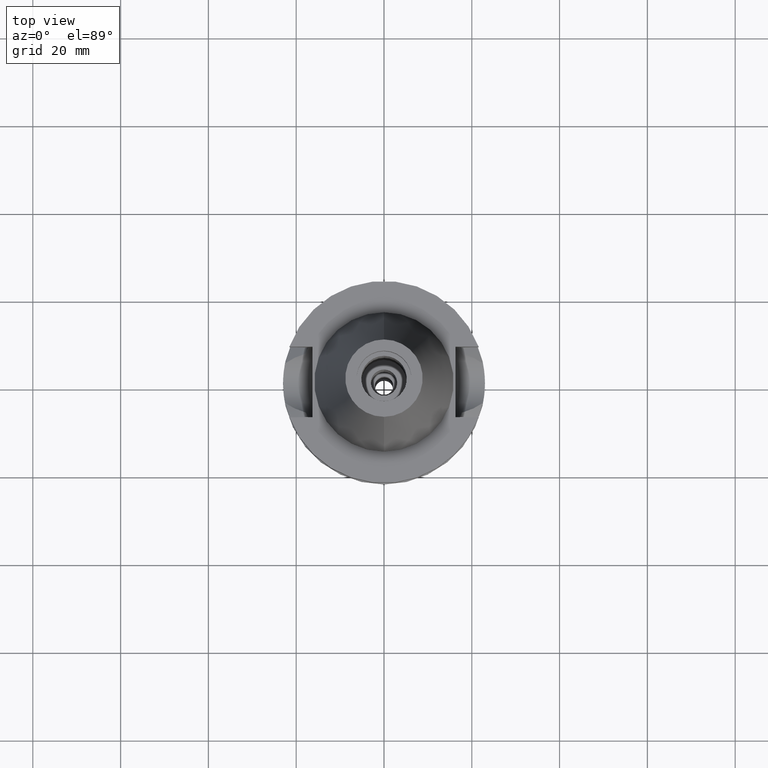
[diagram: clean part render]
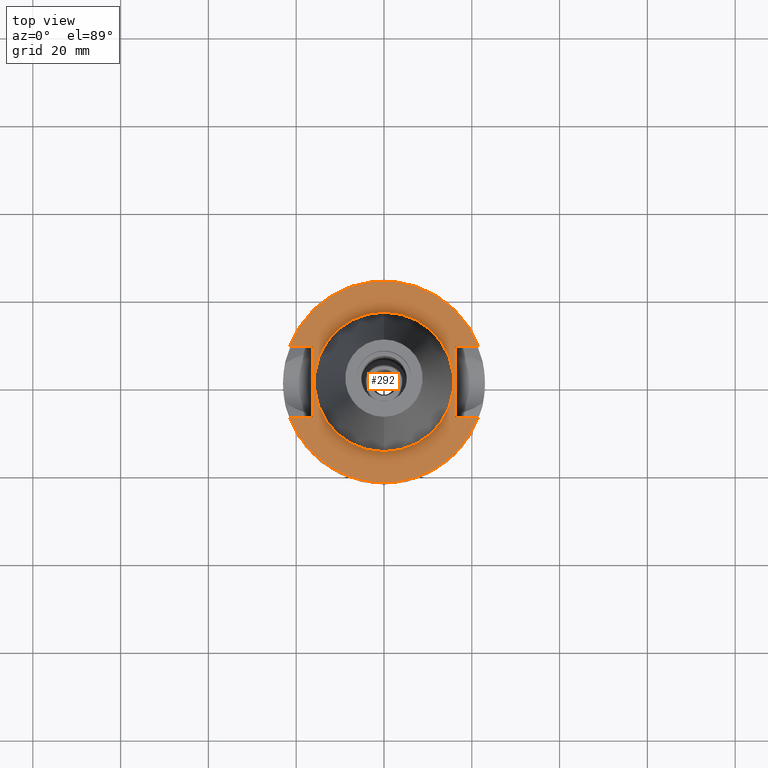
[diagram: same view with one face highlighted and labeled with its STEP entity id]
A machine part, top view. The second image highlights one B-rep face of the part: STEP entity #292.
In plain terms, the highlighted planar face has unit normal (0, 0, -1).
Its self-contained STEP definition (entity closure, byte-faithful):
#10 = DIRECTION ( 'NONE',  ( 0.0000000000000000000, -1.000000000000000000, 0.0000000000000000000 ) ) ;
#17 = CARTESIAN_POINT ( 'NONE',  ( 16.29999999999999716, 8.050000000000000711, -1.000000000000000000 ) ) ;
#44 = AXIS2_PLACEMENT_3D ( 'NONE', #237, #2260, #1130 ) ;
#46 = EDGE_CURVE ( 'NONE', #525, #2141, #2138, .T. ) ;
#111 = EDGE_LOOP ( 'NONE', ( #1026, #2901, #780, #2369, #2310, #608, #1192, #2338 ) ) ;
#120 = VECTOR ( 'NONE', #649, 1000.000000000000000 ) ;
#190 = CARTESIAN_POINT ( 'NONE',  ( 0.0000000000000000000, 1.908856965831000054E-14, -0.9999999999999000799 ) ) ;
#212 = CIRCLE ( 'NONE', #1205, 15.87500000000000000 ) ;
#237 = CARTESIAN_POINT ( 'NONE',  ( 0.0000000000000000000, 1.908856965831000054E-14, -0.9999999999999000799 ) ) ;
#245 = EDGE_CURVE ( 'NONE', #1819, #1390, #1529, .T. ) ;
#292 = ADVANCED_FACE ( 'NONE', ( #1425, #788 ), #1233, .F. ) ;
#320 = VECTOR ( 'NONE', #2548, 1000.000000000000000 ) ;
#341 = VERTEX_POINT ( 'NONE', #1719 ) ;
#520 = AXIS2_PLACEMENT_3D ( 'NONE', #2342, #2779, #730 ) ;
#525 = VERTEX_POINT ( 'NONE', #2503 ) ;
#547 = CARTESIAN_POINT ( 'NONE',  ( -16.29999999999999716, 8.050000000000000711, -1.000000000000000000 ) ) ;
#549 = VECTOR ( 'NONE', #926, 1000.000000000000000 ) ;
#608 = ORIENTED_EDGE ( 'NONE', *, *, #245, .F. ) ;
#649 = DIRECTION ( 'NONE',  ( 0.0000000000000000000, -1.000000000000000000, 0.0000000000000000000 ) ) ;
#690 = EDGE_CURVE ( 'NONE', #2107, #2502, #2836, .T. ) ;
#700 = CARTESIAN_POINT ( 'NONE',  ( 0.0000000000000000000, 1.908856965831000054E-14, -0.9999999999999000799 ) ) ;
#730 = DIRECTION ( 'NONE',  ( 0.0000000000000000000, 1.000000000000000000, 0.0000000000000000000 ) ) ;
#763 = CARTESIAN_POINT ( 'NONE',  ( 0.0000000000000000000, -15.87500000000000000, -0.9999999999999000799 ) ) ;
#780 = ORIENTED_EDGE ( 'NONE', *, *, #2422, .F. ) ;
#787 = CARTESIAN_POINT ( 'NONE',  ( 16.29999999999999716, -8.050000000000000711, -1.000000000000000000 ) ) ;
#788 = FACE_BOUND ( 'NONE', #2192, .T. ) ;
#862 = DIRECTION ( 'NONE',  ( 0.0000000000000000000, 0.0000000000000000000, 1.000000000000000000 ) ) ;
#893 = CARTESIAN_POINT ( 'NONE',  ( -16.29999999999999716, 8.050000000000000711, -1.000000000000000000 ) ) ;
#907 = LINE ( 'NONE', #893, #2284 ) ;
#926 = DIRECTION ( 'NONE',  ( 1.000000000000000000, 9.380896855521999773E-14, 0.0000000000000000000 ) ) ;
#940 = LINE ( 'NONE', #1853, #1859 ) ;
#1003 = EDGE_CURVE ( 'NONE', #2502, #1819, #907, .T. ) ;
#1026 = ORIENTED_EDGE ( 'NONE', *, *, #2108, .T. ) ;
#1027 = CARTESIAN_POINT ( 'NONE',  ( 21.54524309446999908, 8.050000000000000711, -0.9999999999999000799 ) ) ;
#1050 = CARTESIAN_POINT ( 'NONE',  ( -16.29999999999999716, -8.050000000000000711, -1.000000000000000000 ) ) ;
#1068 = CARTESIAN_POINT ( 'NONE',  ( -16.29999999999999716, -8.050000000000000711, -1.000000000000000000 ) ) ;
#1087 = LINE ( 'NONE', #1050, #2166 ) ;
#1102 = EDGE_CURVE ( 'NONE', #1447, #1755, #212, .T. ) ;
#1130 = DIRECTION ( 'NONE',  ( 0.0000000000000000000, -1.000000000000000000, 0.0000000000000000000 ) ) ;
#1192 = ORIENTED_EDGE ( 'NONE', *, *, #1003, .F. ) ;
#1205 = AXIS2_PLACEMENT_3D ( 'NONE', #700, #862, #10 ) ;
#1222 = VERTEX_POINT ( 'NONE', #787 ) ;
#1233 = PLANE ( 'NONE',  #2194 ) ;
#1361 = AXIS2_PLACEMENT_3D ( 'NONE', #190, #1578, #1400 ) ;
#1363 = ORIENTED_EDGE ( 'NONE', *, *, #2864, .F. ) ;
#1390 = VERTEX_POINT ( 'NONE', #1027 ) ;
#1400 = DIRECTION ( 'NONE',  ( 0.0000000000000000000, 1.000000000000000000, 0.0000000000000000000 ) ) ;
#1425 = FACE_OUTER_BOUND ( 'NONE', #111, .T. ) ;
#1447 = VERTEX_POINT ( 'NONE', #763 ) ;
#1473 = CARTESIAN_POINT ( 'NONE',  ( 0.0000000000000000000, 1.212400331155999925E-14, -1.000000000000000000 ) ) ;
#1529 = CIRCLE ( 'NONE', #520, 23.00000000000000000 ) ;
#1545 = LINE ( 'NONE', #2893, #120 ) ;
#1578 = DIRECTION ( 'NONE',  ( 0.0000000000000000000, 0.0000000000000000000, 1.000000000000000000 ) ) ;
#1613 = EDGE_CURVE ( 'NONE', #341, #1222, #1545, .T. ) ;
#1719 = CARTESIAN_POINT ( 'NONE',  ( 16.29999999999999716, 8.050000000000000711, -1.000000000000000000 ) ) ;
#1755 = VERTEX_POINT ( 'NONE', #2536 ) ;
#1819 = VERTEX_POINT ( 'NONE', #1880 ) ;
#1853 = CARTESIAN_POINT ( 'NONE',  ( 16.29999999999999716, -8.050000000000000711, -1.000000000000000000 ) ) ;
#1859 = VECTOR ( 'NONE', #2534, 1000.000000000000000 ) ;
#1880 = CARTESIAN_POINT ( 'NONE',  ( -21.54524309446999908, 8.050000000000000711, -1.000000000000000000 ) ) ;
#1887 = EDGE_CURVE ( 'NONE', #341, #1390, #2063, .T. ) ;
#1910 = DIRECTION ( 'NONE',  ( 0.0000000000000000000, -1.000000000000000000, 0.0000000000000000000 ) ) ;
#2011 = DIRECTION ( 'NONE',  ( -1.000000000000000000, 9.347030801892000173E-14, 0.0000000000000000000 ) ) ;
#2063 = LINE ( 'NONE', #17, #549 ) ;
#2107 = VERTEX_POINT ( 'NONE', #1068 ) ;
#2108 = EDGE_CURVE ( 'NONE', #2107, #2141, #1087, .T. ) ;
#2114 = ORIENTED_EDGE ( 'NONE', *, *, #1102, .F. ) ;
#2138 = CIRCLE ( 'NONE', #44, 23.00000000000000000 ) ;
#2141 = VERTEX_POINT ( 'NONE', #2889 ) ;
#2166 = VECTOR ( 'NONE', #2937, 1000.000000000000000 ) ;
#2192 = EDGE_LOOP ( 'NONE', ( #1363, #2114 ) ) ;
#2194 = AXIS2_PLACEMENT_3D ( 'NONE', #1473, #2840, #1910 ) ;
#2260 = DIRECTION ( 'NONE',  ( 0.0000000000000000000, 0.0000000000000000000, -1.000000000000000000 ) ) ;
#2284 = VECTOR ( 'NONE', #2011, 1000.000000000000000 ) ;
#2310 = ORIENTED_EDGE ( 'NONE', *, *, #1887, .T. ) ;
#2338 = ORIENTED_EDGE ( 'NONE', *, *, #690, .F. ) ;
#2342 = CARTESIAN_POINT ( 'NONE',  ( 0.0000000000000000000, 1.908856965831000054E-14, -0.9999999999999000799 ) ) ;
#2369 = ORIENTED_EDGE ( 'NONE', *, *, #1613, .F. ) ;
#2422 = EDGE_CURVE ( 'NONE', #1222, #525, #940, .T. ) ;
#2502 = VERTEX_POINT ( 'NONE', #547 ) ;
#2503 = CARTESIAN_POINT ( 'NONE',  ( 21.54524309446999908, -8.050000000000000711, -1.000000000000000000 ) ) ;
#2534 = DIRECTION ( 'NONE',  ( 1.000000000000000000, -9.347030801892000173E-14, 0.0000000000000000000 ) ) ;
#2536 = CARTESIAN_POINT ( 'NONE',  ( 0.0000000000000000000, 15.87500000000000000, -0.9999999999999000799 ) ) ;
#2548 = DIRECTION ( 'NONE',  ( 0.0000000000000000000, 1.000000000000000000, 0.0000000000000000000 ) ) ;
#2573 = CARTESIAN_POINT ( 'NONE',  ( -16.29999999999999716, -8.050000000000000711, -1.000000000000000000 ) ) ;
#2645 = CIRCLE ( 'NONE', #1361, 15.87500000000000000 ) ;
#2779 = DIRECTION ( 'NONE',  ( 0.0000000000000000000, 0.0000000000000000000, -1.000000000000000000 ) ) ;
#2836 = LINE ( 'NONE', #2573, #320 ) ;
#2840 = DIRECTION ( 'NONE',  ( 0.0000000000000000000, 0.0000000000000000000, -1.000000000000000000 ) ) ;
#2864 = EDGE_CURVE ( 'NONE', #1755, #1447, #2645, .T. ) ;
#2889 = CARTESIAN_POINT ( 'NONE',  ( -21.54524309446999908, -8.050000000000000711, -1.000000000000000000 ) ) ;
#2893 = CARTESIAN_POINT ( 'NONE',  ( 16.29999999999999716, 8.050000000000000711, -1.000000000000000000 ) ) ;
#2901 = ORIENTED_EDGE ( 'NONE', *, *, #46, .F. ) ;
#2937 = DIRECTION ( 'NONE',  ( -1.000000000000000000, -9.313164748262000573E-14, 0.0000000000000000000 ) ) ;